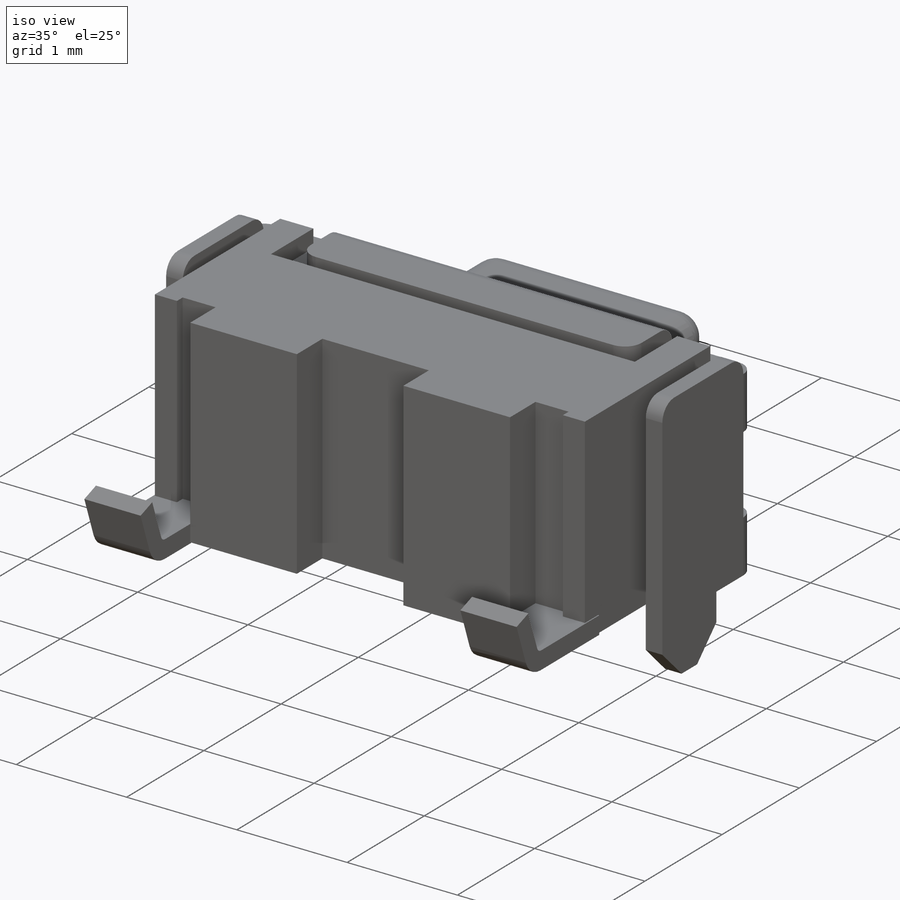
[diagram: iso view]
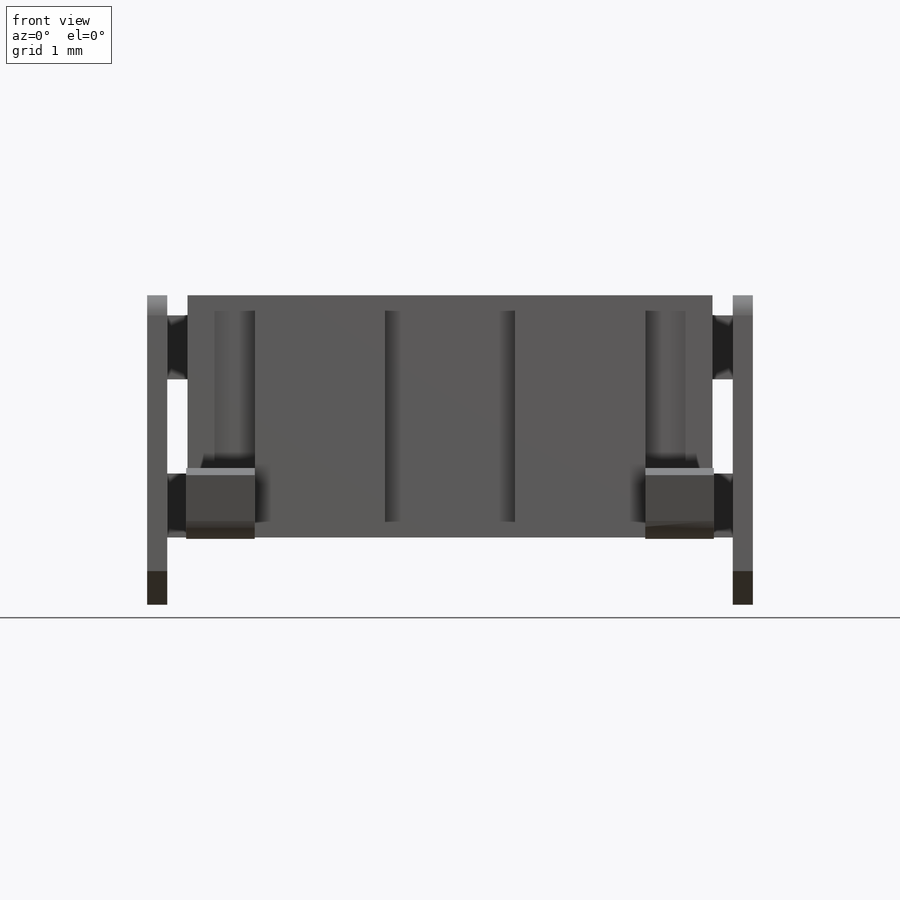
[diagram: front view]
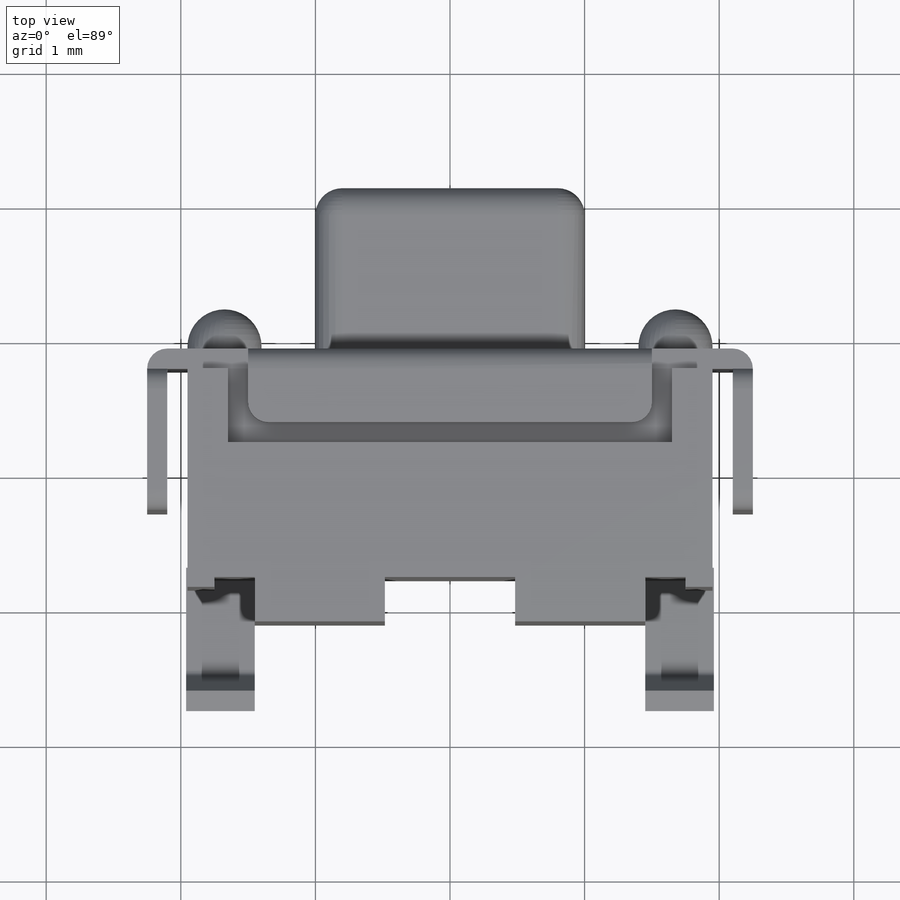
[diagram: top view]
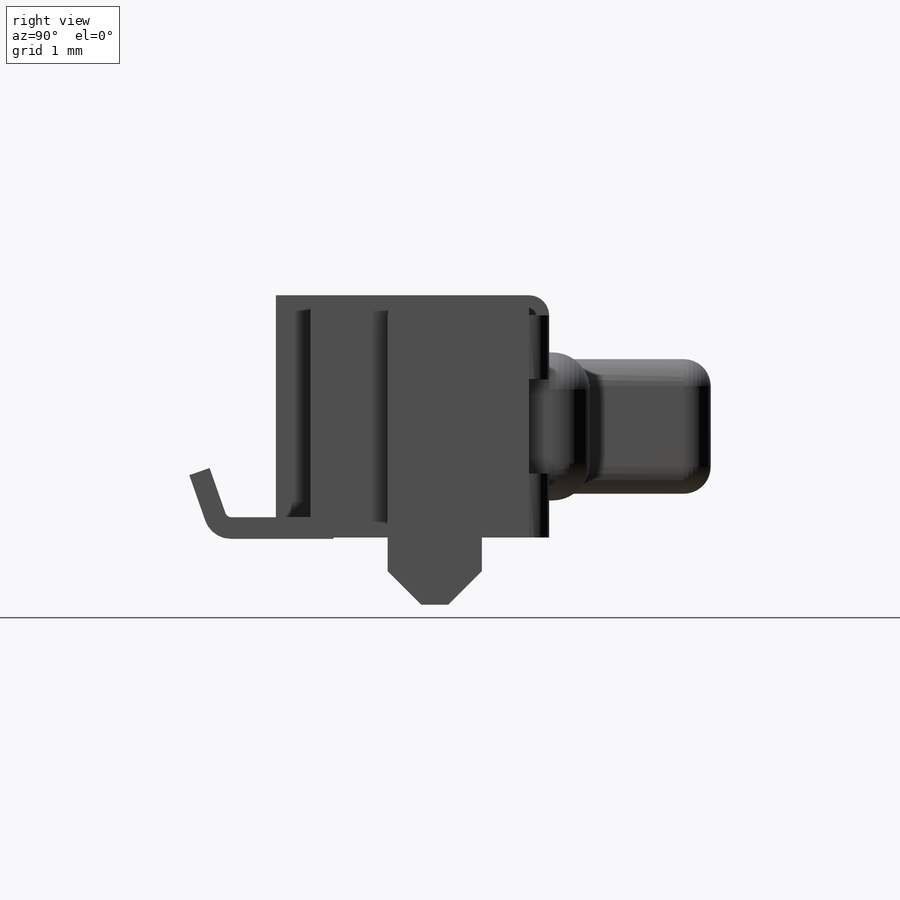
[diagram: right view]
SOLIDWORKS PART (.sldprt)
format: sldprt  version: not decoded by parser v0  size: 695,808 bytes
history: native  units: mm
features: sketch x12, extrude x5, cut_extrude x5, fillet x5, material x1, plane x1 (+12 scaffold rows collapsed)
feature tree (41):
  scaffold x12  (default folders/planes/origin — collapsed)
  material  "Material <not specified>"
  plane  "Plane1"  Offset=0.83mm
  sketch  "Sketch1"  dims[D1=1.55mm D2=3.9mm D3=2.9mm D4=0.33mm D5=0.2mm]
  extrude  "Extrude1"  Depth=1.8mm
  sketch  "Sketch2"  dims[c1.D1=1.05mm c1.D2=4.2mm c2.D1=1.8mm c2.D2=0.5mm c2.D5=0.15mm c2.D6=1.0mm c2.D7=5.0mm]
  sketch  "Sketch3"  dims[D1=0.55mm D2=0.3mm D3=0.15mm D4=0.15mm D5=0.15mm]
  cut_extrude  "Cut-Extrude1"  Depth=0.15mm
  fillet  "Fillet1"  Radius=0.15mm
  sketch  "Sketch4"  dims[c1.D1=0.5mm c1.D2=~0.469068mm c2.D2=45.0deg c2.D3=0.2mm c2.D4=0.85mm]
  cut_extrude  "Cut-Extrude2"  [1 undecoded]
  sketch  "Sketch5"  dims[D1=0.0mm]
  cut_extrude  "Cut-Extrude3"  Depth=0.01mm
  sketch  "Sketch6"  dims[D1=0.7mm]
  cut_extrude  "Cut-Extrude4"  Depth=0.15mm
  sketch  "Sketch7"  dims[D1=0.1mm D2=0.2mm D3=0.2mm]
  extrude  "Extrude2"  Depth=0.3mm
  fillet  "Fillet2"  Radius=0.275mm
  sketch  "Sketch8"  dims[D1=1.0mm D2=2.0mm]
  extrude  "Extrude3"  Depth=1.2mm
  fillet  "Fillet3"  Radius=0.2mm
  sketch  "Sketch9"  dims[D1=0.1mm]
  cut_extrude  "Cut-Extrude5"  Depth=0.15mm
  sketch  "Sketch10"  dims[D1=1.65mm]
  extrude  "Extrude-Thin3"  Depth=0.51mm
  extrude  "Extrude-Thin4"  [1 undecoded]
  sketch  "Sketch10<2>"  dims[D1=0.51mm D5=0.15mm D6=0.01mm D7=5.0mm]
  fillet  "Fillet4"  Radius=0.2mm
  fillet  "Fillet5"  Radius=0.05mm
  sketch  "Component_Outline"
decode coverage: 24 of 27 modeling features carry decoded parameters
note: ~ marks probable driven/reference dimensions
note: 2 parameter values undecoded
note: suppression state not decoded; provenance and decode notes live in map.json
